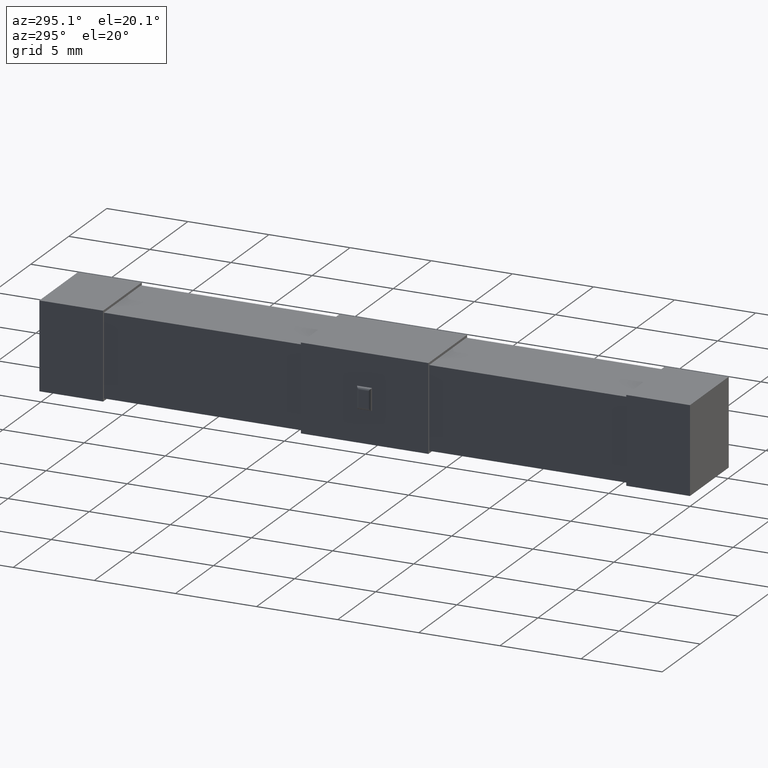
[diagram: clean part render]
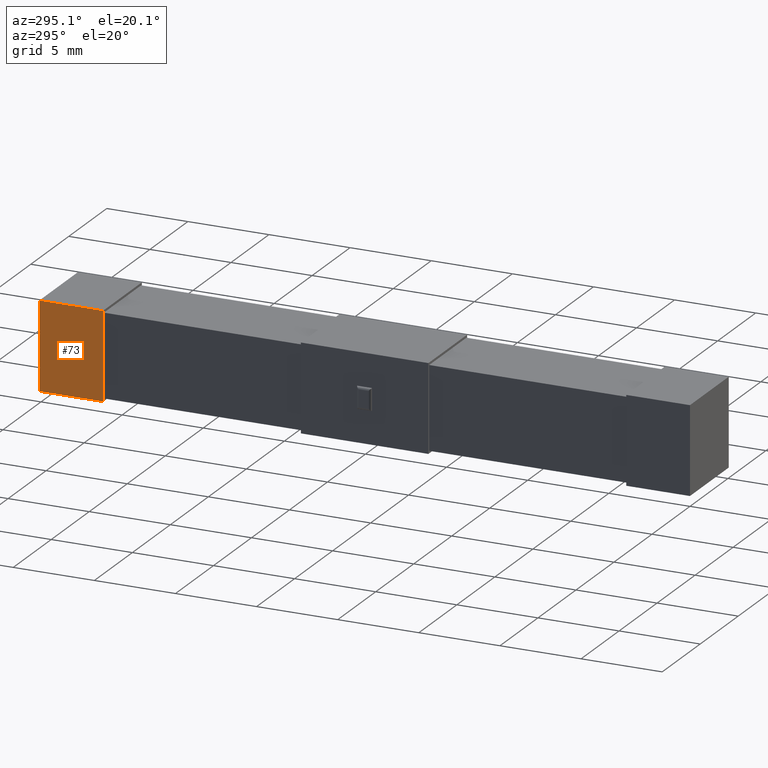
[diagram: same view with one face highlighted and labeled with its STEP entity id]
A machine part, auxiliary view. The second image highlights one B-rep face of the part: STEP entity #73.
In plain terms, the highlighted planar face has unit normal (1, 0, 0).
Its self-contained STEP definition (entity closure, byte-faithful):
#73 = ADVANCED_FACE ( 'NONE', ( #530 ), #238, .F. ) ;
#185 = VECTOR ( 'NONE', #511, 1000.000000000000000 ) ;
#206 = EDGE_CURVE ( 'NONE', #650, #1537, #1926, .T. ) ;
#238 = PLANE ( 'NONE',  #1447 ) ;
#282 = DIRECTION ( 'NONE',  ( -0.000000000000000000, -0.000000000000000000, 1.000000000000000000 ) ) ;
#323 = ORIENTED_EDGE ( 'NONE', *, *, #2519, .F. ) ;
#333 = CARTESIAN_POINT ( 'NONE',  ( 0.000000000000000000, 40.10000000000000142, 0.000000000000000000 ) ) ;
#445 = ORIENTED_EDGE ( 'NONE', *, *, #206, .T. ) ;
#511 = DIRECTION ( 'NONE',  ( -0.000000000000000000, -1.000000000000000000, -0.000000000000000000 ) ) ;
#530 = FACE_OUTER_BOUND ( 'NONE', #2909, .T. ) ;
#650 = VERTEX_POINT ( 'NONE', #1547 ) ;
#739 = CARTESIAN_POINT ( 'NONE',  ( 0.000000000000000000, 0.000000000000000000, 5.400000000000000355 ) ) ;
#1002 = LINE ( 'NONE', #739, #185 ) ;
#1039 = DIRECTION ( 'NONE',  ( -0.000000000000000000, -1.000000000000000000, -0.000000000000000000 ) ) ;
#1079 = DIRECTION ( 'NONE',  ( 1.000000000000000000, 0.000000000000000000, 0.000000000000000000 ) ) ;
#1163 = DIRECTION ( 'NONE',  ( -0.000000000000000000, -0.000000000000000000, -1.000000000000000000 ) ) ;
#1303 = LINE ( 'NONE', #2347, #2241 ) ;
#1442 = CARTESIAN_POINT ( 'NONE',  ( 0.000000000000000000, 40.10000000000000142, 5.400000000000000355 ) ) ;
#1447 = AXIS2_PLACEMENT_3D ( 'NONE', #2645, #1079, #2126 ) ;
#1537 = VERTEX_POINT ( 'NONE', #333 ) ;
#1547 = CARTESIAN_POINT ( 'NONE',  ( 0.000000000000000000, 40.10000000000000142, 5.400000000000000355 ) ) ;
#1556 = VECTOR ( 'NONE', #282, 1000.000000000000000 ) ;
#1926 = LINE ( 'NONE', #1442, #1973 ) ;
#1949 = VERTEX_POINT ( 'NONE', #3119 ) ;
#1973 = VECTOR ( 'NONE', #1163, 1000.000000000000000 ) ;
#2126 = DIRECTION ( 'NONE',  ( 0.000000000000000000, 0.000000000000000000, -1.000000000000000000 ) ) ;
#2217 = VERTEX_POINT ( 'NONE', #2816 ) ;
#2241 = VECTOR ( 'NONE', #1039, 1000.000000000000000 ) ;
#2347 = CARTESIAN_POINT ( 'NONE',  ( 0.000000000000000000, 0.000000000000000000, 0.000000000000000000 ) ) ;
#2442 = CARTESIAN_POINT ( 'NONE',  ( 9.895391066470449996E-16, 36.17020000000000124, 5.250000000000001776 ) ) ;
#2519 = EDGE_CURVE ( 'NONE', #650, #1949, #1002, .T. ) ;
#2641 = LINE ( 'NONE', #2442, #1556 ) ;
#2645 = CARTESIAN_POINT ( 'NONE',  ( 0.000000000000000000, 0.000000000000000000, 5.400000000000000355 ) ) ;
#2696 = EDGE_CURVE ( 'NONE', #2217, #1949, #2641, .T. ) ;
#2816 = CARTESIAN_POINT ( 'NONE',  ( 0.000000000000000000, 36.17020000000000124, 0.000000000000000000 ) ) ;
#2909 = EDGE_LOOP ( 'NONE', ( #3180, #3234, #323, #445 ) ) ;
#3119 = CARTESIAN_POINT ( 'NONE',  ( 9.895391066470449996E-16, 36.17020000000000124, 5.400000000000000355 ) ) ;
#3180 = ORIENTED_EDGE ( 'NONE', *, *, #3309, .T. ) ;
#3234 = ORIENTED_EDGE ( 'NONE', *, *, #2696, .T. ) ;
#3309 = EDGE_CURVE ( 'NONE', #1537, #2217, #1303, .T. ) ;